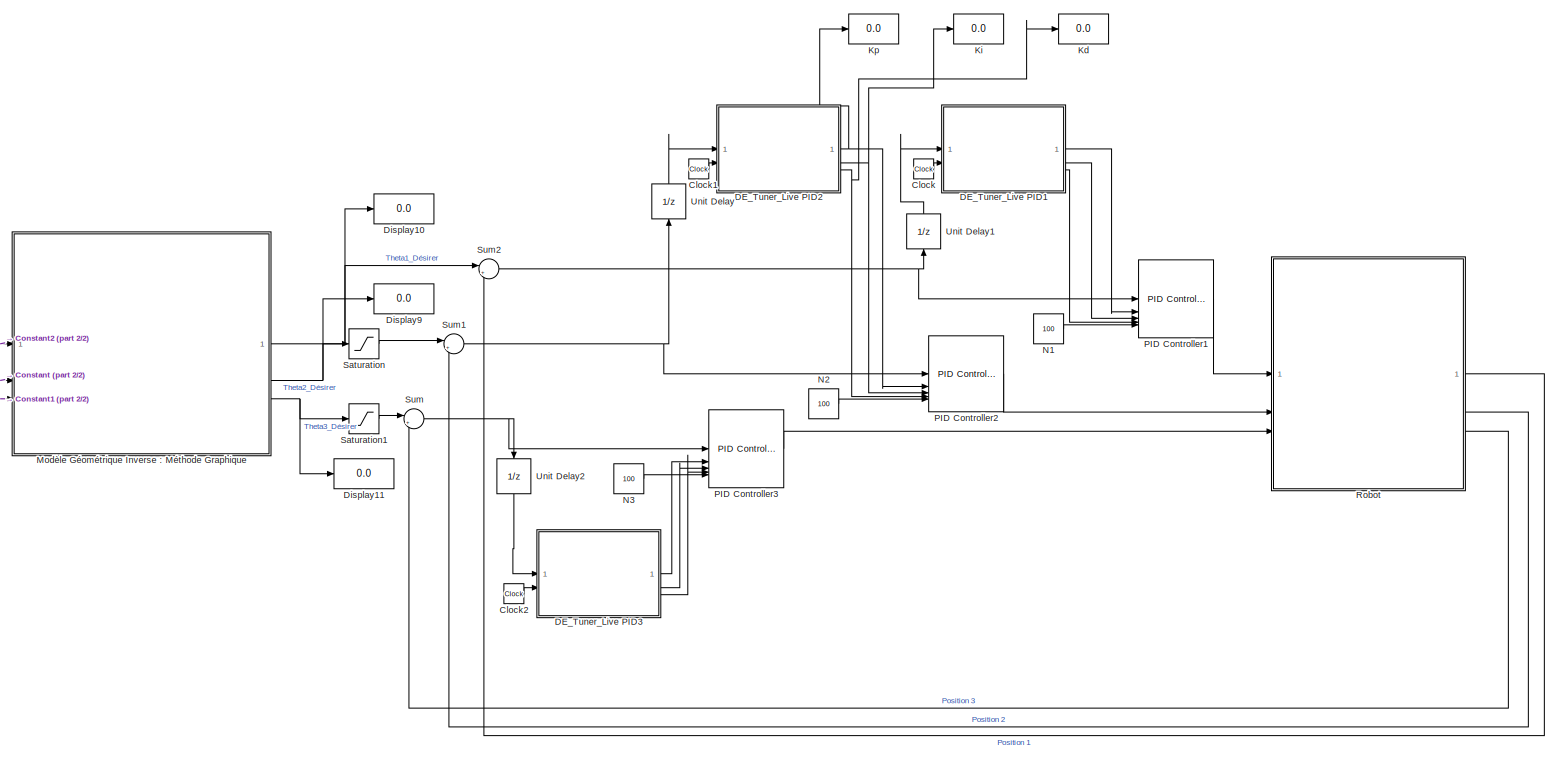
[diagram: root canvas - part 1/2, most of the canvas]
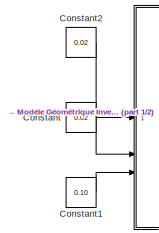
[diagram: root canvas - part 2/2, middle left region]
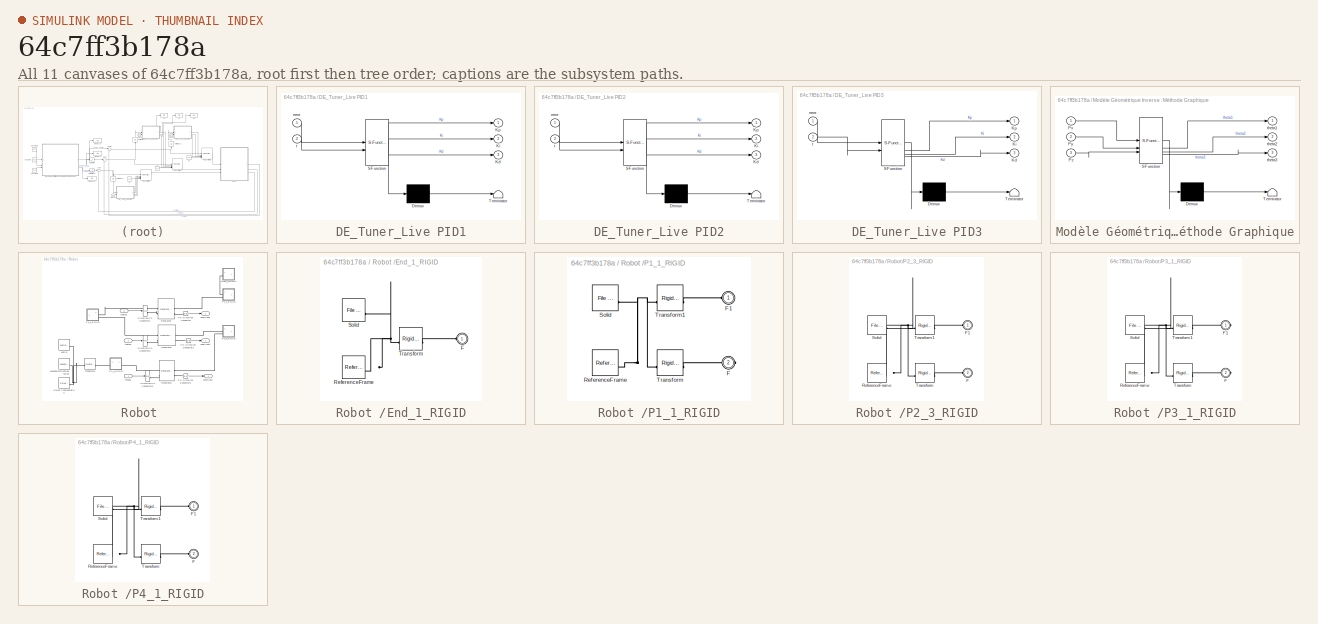
[diagram: thumbnail index - all 11 canvases of the model, root first then tree order]
MODEL slx_64c7ff3b178a
KIND model
CONFIG AbsTol = auto
CONFIG EnableMultiTasking = off
CONFIG FixedStep = auto
CONFIG MaxStep = auto
CONFIG MinStep = auto
CONFIG RelTol = 1e-3
CONFIG SampleTimeConstraint = Unconstrained
CONFIG SolverName = VariableStepAuto
CONFIG StartTime = 0.0
CONFIG StopTime = 10
WORKSPACE source: external: MATLAB File  (data not in archive)
BLOCK [Clock] Clock
  Decimation = 1
  DisplayTime = on
BLOCK [Clock] Clock1
  Decimation = 1
  DisplayTime = on
BLOCK [Clock] Clock2
  Decimation = 1
  DisplayTime = on
BLOCK [Constant] Constant
  Value = 0.02
BLOCK [Constant] Constant1
  Value = 0.10
BLOCK [Constant] Constant2
  Value = 0.02
BLOCK [SubSystem] DE_Tuner_Live PID1
  ErrorFcn = Stateflow.Translate.translate
  PermitHierarchicalResolution = ExplicitOnly
  SFBlockType = MATLAB Function
  TreatAsAtomicUnit = on
BLOCK [Demux] DE_Tuner_Live PID1/ Demux 
  Outputs = 1
BLOCK [S-Function] DE_Tuner_Live PID1/ SFunction 
  EnableBusSupport = off
  FunctionName = sf_sfun
  PortCounts = [2 4]
  SFcnIsStateOwnerBlock = off
  SFunctionDeploymentMode = off
  Tag = Stateflow S-Function 1
BLOCK [Terminator] DE_Tuner_Live PID1/ Terminator 
BLOCK [Outport] DE_Tuner_Live PID1/Kd
  Port = 3
BLOCK [Outport] DE_Tuner_Live PID1/Ki
  Port = 2
BLOCK [Outport] DE_Tuner_Live PID1/Kp
BLOCK [Inport] DE_Tuner_Live PID1/error
BLOCK [Inport] DE_Tuner_Live PID1/t
  Port = 2
BLOCK [SubSystem] DE_Tuner_Live PID2
  ErrorFcn = Stateflow.Translate.translate
  PermitHierarchicalResolution = ExplicitOnly
  SFBlockType = MATLAB Function
  TreatAsAtomicUnit = on
BLOCK [Demux] DE_Tuner_Live PID2/ Demux 
  Outputs = 1
BLOCK [S-Function] DE_Tuner_Live PID2/ SFunction 
  EnableBusSupport = off
  FunctionName = sf_sfun
  PortCounts = [2 4]
  SFcnIsStateOwnerBlock = off
  SFunctionDeploymentMode = off
  Tag = Stateflow S-Function 3
BLOCK [Terminator] DE_Tuner_Live PID2/ Terminator 
BLOCK [Outport] DE_Tuner_Live PID2/Kd
  Port = 3
BLOCK [Outport] DE_Tuner_Live PID2/Ki
  Port = 2
BLOCK [Outport] DE_Tuner_Live PID2/Kp
BLOCK [Inport] DE_Tuner_Live PID2/error
BLOCK [Inport] DE_Tuner_Live PID2/t
  Port = 2
BLOCK [SubSystem] DE_Tuner_Live PID3
  ErrorFcn = Stateflow.Translate.translate
  PermitHierarchicalResolution = ExplicitOnly
  SFBlockType = MATLAB Function
  TreatAsAtomicUnit = on
BLOCK [Demux] DE_Tuner_Live PID3/ Demux 
  Outputs = 1
BLOCK [S-Function] DE_Tuner_Live PID3/ SFunction 
  EnableBusSupport = off
  FunctionName = sf_sfun
  PortCounts = [2 4]
  SFcnIsStateOwnerBlock = off
  SFunctionDeploymentMode = off
  Tag = Stateflow S-Function 4
BLOCK [Terminator] DE_Tuner_Live PID3/ Terminator 
BLOCK [Outport] DE_Tuner_Live PID3/Kd
  Port = 3
BLOCK [Outport] DE_Tuner_Live PID3/Ki
  Port = 2
BLOCK [Outport] DE_Tuner_Live PID3/Kp
BLOCK [Inport] DE_Tuner_Live PID3/error
BLOCK [Inport] DE_Tuner_Live PID3/t
  Port = 2
BLOCK [Display] Display10
  Decimation = 1
BLOCK [Display] Display11
  Decimation = 1
BLOCK [Display] Display9
  Decimation = 1
BLOCK [Display] Kd
  Decimation = 1
BLOCK [Display] Ki
  Decimation = 1
BLOCK [Display] Kp
  Decimation = 1
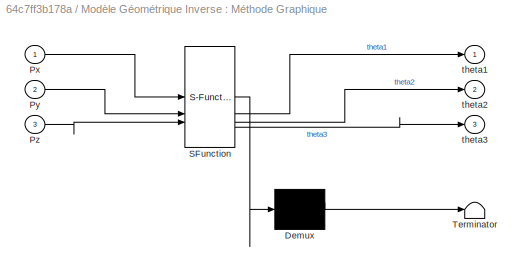
BLOCK [SubSystem] Modèle Géométrique Inverse : Méthode Graphique
  ErrorFcn = Stateflow.Translate.translate
  PermitHierarchicalResolution = ExplicitOnly
  SFBlockType = MATLAB Function
  TreatAsAtomicUnit = on
BLOCK [Demux] Modèle Géométrique Inverse : Méthode Graphique/ Demux 
  Outputs = 1
BLOCK [S-Function] Modèle Géométrique Inverse : Méthode Graphique/ SFunction 
  EnableBusSupport = off
  FunctionName = sf_sfun
  PortCounts = [3 4]
  SFcnIsStateOwnerBlock = off
  SFunctionDeploymentMode = off
  Tag = Stateflow S-Function 2
BLOCK [Terminator] Modèle Géométrique Inverse : Méthode Graphique/ Terminator 
BLOCK [Inport] Modèle Géométrique Inverse : Méthode Graphique/Px
BLOCK [Inport] Modèle Géométrique Inverse : Méthode Graphique/Py
  Port = 2
BLOCK [Inport] Modèle Géométrique Inverse : Méthode Graphique/Pz
  Port = 3
BLOCK [Outport] Modèle Géométrique Inverse : Méthode Graphique/theta1
BLOCK [Outport] Modèle Géométrique Inverse : Méthode Graphique/theta2
  Port = 2
BLOCK [Outport] Modèle Géométrique Inverse : Méthode Graphique/theta3
  Port = 3
BLOCK [Constant] N1
  Value = 100
BLOCK [Constant] N2
  Value = 100
BLOCK [Constant] N3
  Value = 100
BLOCK [Reference] PID Controller1   REF=slpidlib/PID Controller
  LibrarySourceBlock = simulink/Continuous/PID Controller
  SourceBlock = slpidlib/PID Controller
  SourceType = PID 1dof
BLOCK [Reference] PID Controller2    REF=slpidlib/PID Controller
  LibrarySourceBlock = simulink/Continuous/PID Controller
  SourceBlock = slpidlib/PID Controller
  SourceType = PID 1dof
BLOCK [Reference] PID Controller3   REF=slpidlib/PID Controller
  LibrarySourceBlock = simulink/Continuous/PID Controller
  SourceBlock = slpidlib/PID Controller
  SourceType = PID 1dof
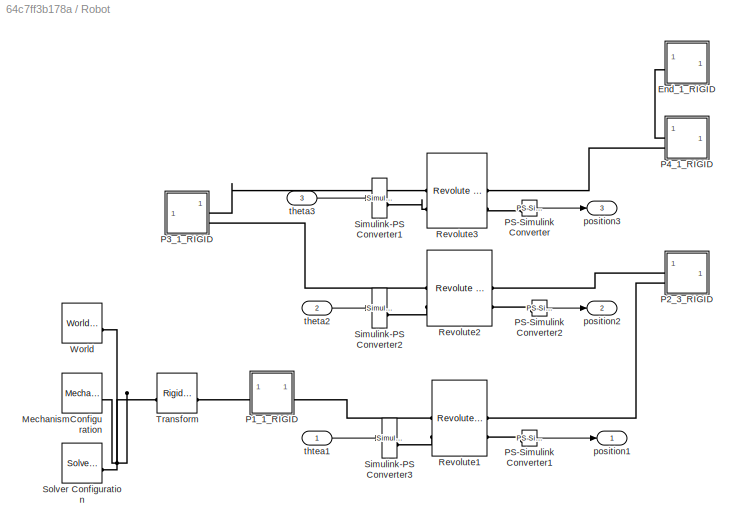
BLOCK [SubSystem] Robot 
BLOCK [SubSystem] Robot /End_1_RIGID
BLOCK [PMIOPort] Robot /End_1_RIGID/F
  Side = Left
BLOCK [Reference] Robot /End_1_RIGID/ReferenceFrame  REF=sm_lib/Frames and
Transforms/Reference
Frame
  SourceBlock = sm_lib/Frames and\nTransforms/Reference\nFrame
  SourceType = Reference\nFrame
BLOCK [Reference] Robot /End_1_RIGID/Solid  REF=sm_lib/Body Elements/File Solid
  SourceBlock = sm_lib/Body Elements/File Solid
  SourceType = File Solid
BLOCK [Reference] Robot /End_1_RIGID/Transform  REF=sm_lib/Frames and
Transforms/Rigid
Transform
  SourceBlock = sm_lib/Frames and\nTransforms/Rigid\nTransform
  SourceType = Rigid\nTransform
BLOCK [Reference] Robot /MechanismConfiguration  REF=sm_lib/Utilities/Mechanism
Configuration
  SourceBlock = sm_lib/Utilities/Mechanism\nConfiguration
  SourceType = Mechanism\nConfiguration
BLOCK [SubSystem] Robot /P1_1_RIGID
BLOCK [PMIOPort] Robot /P1_1_RIGID/F
  Port = 2
  Side = Right
BLOCK [PMIOPort] Robot /P1_1_RIGID/F1
  Side = Left
BLOCK [Reference] Robot /P1_1_RIGID/ReferenceFrame  REF=sm_lib/Frames and
Transforms/Reference
Frame
  SourceBlock = sm_lib/Frames and\nTransforms/Reference\nFrame
  SourceType = Reference\nFrame
BLOCK [Reference] Robot /P1_1_RIGID/Solid  REF=sm_lib/Body Elements/File Solid
  SourceBlock = sm_lib/Body Elements/File Solid
  SourceType = File Solid
BLOCK [Reference] Robot /P1_1_RIGID/Transform  REF=sm_lib/Frames and
Transforms/Rigid
Transform
  SourceBlock = sm_lib/Frames and\nTransforms/Rigid\nTransform
  SourceType = Rigid\nTransform
BLOCK [Reference] Robot /P1_1_RIGID/Transform1  REF=sm_lib/Frames and
Transforms/Rigid
Transform
  SourceBlock = sm_lib/Frames and\nTransforms/Rigid\nTransform
  SourceType = Rigid\nTransform
BLOCK [SubSystem] Robot /P2_3_RIGID
BLOCK [PMIOPort] Robot /P2_3_RIGID/F
  Port = 2
  Side = Left
BLOCK [PMIOPort] Robot /P2_3_RIGID/F1
  Side = Left
BLOCK [Reference] Robot /P2_3_RIGID/ReferenceFrame  REF=sm_lib/Frames and
Transforms/Reference
Frame
  SourceBlock = sm_lib/Frames and\nTransforms/Reference\nFrame
  SourceType = Reference\nFrame
BLOCK [Reference] Robot /P2_3_RIGID/Solid  REF=sm_lib/Body Elements/File Solid
  SourceBlock = sm_lib/Body Elements/File Solid
  SourceType = File Solid
BLOCK [Reference] Robot /P2_3_RIGID/Transform  REF=sm_lib/Frames and
Transforms/Rigid
Transform
  SourceBlock = sm_lib/Frames and\nTransforms/Rigid\nTransform
  SourceType = Rigid\nTransform
BLOCK [Reference] Robot /P2_3_RIGID/Transform1  REF=sm_lib/Frames and
Transforms/Rigid
Transform
  SourceBlock = sm_lib/Frames and\nTransforms/Rigid\nTransform
  SourceType = Rigid\nTransform
BLOCK [SubSystem] Robot /P3_1_RIGID
BLOCK [PMIOPort] Robot /P3_1_RIGID/F
  Port = 2
  Side = Right
BLOCK [PMIOPort] Robot /P3_1_RIGID/F1
  Side = Right
BLOCK [Reference] Robot /P3_1_RIGID/ReferenceFrame  REF=sm_lib/Frames and
Transforms/Reference
Frame
  SourceBlock = sm_lib/Frames and\nTransforms/Reference\nFrame
  SourceType = Reference\nFrame
BLOCK [Reference] Robot /P3_1_RIGID/Solid  REF=sm_lib/Body Elements/File Solid
  SourceBlock = sm_lib/Body Elements/File Solid
  SourceType = File Solid
BLOCK [Reference] Robot /P3_1_RIGID/Transform  REF=sm_lib/Frames and
Transforms/Rigid
Transform
  SourceBlock = sm_lib/Frames and\nTransforms/Rigid\nTransform
  SourceType = Rigid\nTransform
BLOCK [Reference] Robot /P3_1_RIGID/Transform1  REF=sm_lib/Frames and
Transforms/Rigid
Transform
  SourceBlock = sm_lib/Frames and\nTransforms/Rigid\nTransform
  SourceType = Rigid\nTransform
BLOCK [SubSystem] Robot /P4_1_RIGID
BLOCK [PMIOPort] Robot /P4_1_RIGID/F
  Port = 2
  Side = Left
BLOCK [PMIOPort] Robot /P4_1_RIGID/F1
  Side = Left
BLOCK [Reference] Robot /P4_1_RIGID/ReferenceFrame  REF=sm_lib/Frames and
Transforms/Reference
Frame
  SourceBlock = sm_lib/Frames and\nTransforms/Reference\nFrame
  SourceType = Reference\nFrame
BLOCK [Reference] Robot /P4_1_RIGID/Solid  REF=sm_lib/Body Elements/File Solid
  SourceBlock = sm_lib/Body Elements/File Solid
  SourceType = File Solid
BLOCK [Reference] Robot /P4_1_RIGID/Transform  REF=sm_lib/Frames and
Transforms/Rigid
Transform
  SourceBlock = sm_lib/Frames and\nTransforms/Rigid\nTransform
  SourceType = Rigid\nTransform
BLOCK [Reference] Robot /P4_1_RIGID/Transform1  REF=sm_lib/Frames and
Transforms/Rigid
Transform
  SourceBlock = sm_lib/Frames and\nTransforms/Rigid\nTransform
  SourceType = Rigid\nTransform
BLOCK [Reference] Robot /PS-Simulink Converter  REF=nesl_utility/PS-Simulink
Converter
  SourceBlock = nesl_utility/PS-Simulink\nConverter
  SourceType = PS-Simulink\nConverter
BLOCK [Reference] Robot /PS-Simulink Converter1  REF=nesl_utility/PS-Simulink
Converter
  SourceBlock = nesl_utility/PS-Simulink\nConverter
  SourceType = PS-Simulink\nConverter
BLOCK [Reference] Robot /PS-Simulink Converter2  REF=nesl_utility/PS-Simulink
Converter
  SourceBlock = nesl_utility/PS-Simulink\nConverter
  SourceType = PS-Simulink\nConverter
BLOCK [Reference] Robot /Revolute1  REF=sm_lib/Joints/Revolute Joint
  SourceBlock = sm_lib/Joints/Revolute Joint
  SourceType = Revolute Joint
BLOCK [Reference] Robot /Revolute2  REF=sm_lib/Joints/Revolute Joint
  SourceBlock = sm_lib/Joints/Revolute Joint
  SourceType = Revolute Joint
BLOCK [Reference] Robot /Revolute3  REF=sm_lib/Joints/Revolute Joint
  SourceBlock = sm_lib/Joints/Revolute Joint
  SourceType = Revolute Joint
BLOCK [Reference] Robot /Simulink-PS Converter1  REF=nesl_utility/Simulink-PS
Converter
  SourceBlock = nesl_utility/Simulink-PS\nConverter
  SourceType = Simulink-PS\nConverter
BLOCK [Reference] Robot /Simulink-PS Converter2  REF=nesl_utility/Simulink-PS
Converter
  SourceBlock = nesl_utility/Simulink-PS\nConverter
  SourceType = Simulink-PS\nConverter
BLOCK [Reference] Robot /Simulink-PS Converter3  REF=nesl_utility/Simulink-PS
Converter
  SourceBlock = nesl_utility/Simulink-PS\nConverter
  SourceType = Simulink-PS\nConverter
BLOCK [Reference] Robot /Solver Configuration  REF=nesl_utility/Solver
Configuration
  SourceBlock = nesl_utility/Solver\nConfiguration
  SourceType = Solver\nConfiguration
BLOCK [Reference] Robot /Transform  REF=sm_lib/Frames and
Transforms/Rigid
Transform
  SourceBlock = sm_lib/Frames and\nTransforms/Rigid\nTransform
  SourceType = Rigid\nTransform
BLOCK [Reference] Robot /World  REF=sm_lib/Frames and
Transforms/World Frame
  SourceBlock = sm_lib/Frames and\nTransforms/World Frame
  SourceType = World Frame
BLOCK [Outport] Robot /position1
BLOCK [Outport] Robot /position2
  Port = 2
BLOCK [Outport] Robot /position3
  Port = 3
BLOCK [Inport] Robot /theta2
  Port = 2
BLOCK [Inport] Robot /theta3
  Port = 3
BLOCK [Inport] Robot /thtea1
BLOCK [Saturate] Saturation
  LowerLimit = (-pi)/2
  UpperLimit = pi/2
BLOCK [Saturate] Saturation1
  LowerLimit = (-pi)/4
  UpperLimit = pi/4
BLOCK [Sum] Sum
  Inputs = |+-
BLOCK [Sum] Sum1
  Inputs = |+-
BLOCK [Sum] Sum2
  Inputs = |+-
BLOCK [UnitDelay] Unit Delay
  HasFrameUpgradeWarning = on
  NameLocation = right
  SampleTime = -1
BLOCK [UnitDelay] Unit Delay1
  HasFrameUpgradeWarning = on
  NameLocation = right
  SampleTime = -1
BLOCK [UnitDelay] Unit Delay2
  HasFrameUpgradeWarning = on
  NameLocation = left
  SampleTime = -1
LINE Clock1:1 -> DE_Tuner_Live PID2:2
LINE Clock2:1 -> DE_Tuner_Live PID3:2
LINE Clock:1 -> DE_Tuner_Live PID1:2
LINE Constant1:1 -> Modèle Géométrique Inverse : Méthode Graphique:3
LINE Constant2:1 -> Modèle Géométrique Inverse : Méthode Graphique:1
LINE Constant:1 -> Modèle Géométrique Inverse : Méthode Graphique:2
LINE DE_Tuner_Live PID1:1 -> PID Controller1 :2
LINE DE_Tuner_Live PID1:2 -> PID Controller1 :3
LINE DE_Tuner_Live PID1:3 -> PID Controller1 :4
NET DE_Tuner_Live PID2:1 -> Kp:1, PID Controller2  :2
NET DE_Tuner_Live PID2:2 -> Ki:1, PID Controller2  :3
NET DE_Tuner_Live PID2:3 -> Kd:1, PID Controller2  :4
LINE DE_Tuner_Live PID3:1 -> PID Controller3 :2
LINE DE_Tuner_Live PID3:2 -> PID Controller3 :3
LINE DE_Tuner_Live PID3:3 -> PID Controller3 :4
NET Modèle Géométrique Inverse : Méthode Graphique:1 -> Display10:1, Sum2:1
NET Modèle Géométrique Inverse : Méthode Graphique:2 -> Display9:1, Saturation:1
NET Modèle Géométrique Inverse : Méthode Graphique:3 -> Display11:1, Saturation1:1
LINE N1:1 -> PID Controller1 :5
LINE N2:1 -> PID Controller2  :5
LINE N3:1 -> PID Controller3 :5
LINE PID Controller1 :1 -> Robot :1
LINE PID Controller2  :1 -> Robot :2
LINE PID Controller3 :1 -> Robot :3
LINE Robot /PS-Simulink Converter1:1 -> Robot /position1:1
LINE Robot /PS-Simulink Converter2:1 -> Robot /position2:1
LINE Robot /PS-Simulink Converter:1 -> Robot /position3:1
LINE Robot /theta2:1 -> Robot /Simulink-PS Converter2:1
LINE Robot /theta3:1 -> Robot /Simulink-PS Converter1:1
LINE Robot /thtea1:1 -> Robot /Simulink-PS Converter3:1
LINE Robot :1 -> Sum2:2
LINE Robot :2 -> Sum1:2
LINE Robot :3 -> Sum:2
LINE Saturation1:1 -> Sum:1
LINE Saturation:1 -> Sum1:1
NET Sum1:1 -> PID Controller2  :1, Unit Delay:1
NET Sum2:1 -> PID Controller1 :1, Unit Delay1:1
NET Sum:1 -> PID Controller3 :1, Unit Delay2:1
LINE Unit Delay1:1 -> DE_Tuner_Live PID1:1
LINE Unit Delay2:1 -> DE_Tuner_Live PID3:1
LINE Unit Delay:1 -> DE_Tuner_Live PID2:1
PLINE Robot /End_1_RIGID/F:RConn1 -- Robot /End_1_RIGID/Transform:RConn1
PNET net1: Robot /End_1_RIGID/ReferenceFrame:RConn1 -- Robot /End_1_RIGID/Solid:RConn1 -- Robot /End_1_RIGID/Transform:LConn1
PLINE Robot /End_1_RIGID:LConn1 -- Robot /P4_1_RIGID:LConn1
PNET net2: Robot /MechanismConfiguration:RConn1 -- Robot /Solver Configuration:RConn1 -- Robot /Transform:LConn1 -- Robot /World:RConn1
PLINE Robot /P1_1_RIGID/F1:RConn1 -- Robot /P1_1_RIGID/Transform1:RConn1
PLINE Robot /P1_1_RIGID/F:RConn1 -- Robot /P1_1_RIGID/Transform:RConn1
PNET net3: Robot /P1_1_RIGID/ReferenceFrame:RConn1 -- Robot /P1_1_RIGID/Solid:RConn1 -- Robot /P1_1_RIGID/Transform1:LConn1 -- Robot /P1_1_RIGID/Transform:LConn1
PLINE Robot /P1_1_RIGID:LConn1 -- Robot /Transform:RConn1
PLINE Robot /P1_1_RIGID:RConn1 -- Robot /Revolute1:LConn1
PLINE Robot /P2_3_RIGID/F1:RConn1 -- Robot /P2_3_RIGID/Transform1:RConn1
PLINE Robot /P2_3_RIGID/F:RConn1 -- Robot /P2_3_RIGID/Transform:RConn1
PNET net4: Robot /P2_3_RIGID/ReferenceFrame:RConn1 -- Robot /P2_3_RIGID/Solid:RConn1 -- Robot /P2_3_RIGID/Transform1:LConn1 -- Robot /P2_3_RIGID/Transform:LConn1
PLINE Robot /P2_3_RIGID:LConn1 -- Robot /Revolute2:RConn1
PLINE Robot /P2_3_RIGID:LConn2 -- Robot /Revolute1:RConn1
PLINE Robot /P3_1_RIGID/F1:RConn1 -- Robot /P3_1_RIGID/Transform1:RConn1
PLINE Robot /P3_1_RIGID/F:RConn1 -- Robot /P3_1_RIGID/Transform:RConn1
PNET net5: Robot /P3_1_RIGID/ReferenceFrame:RConn1 -- Robot /P3_1_RIGID/Solid:RConn1 -- Robot /P3_1_RIGID/Transform1:LConn1 -- Robot /P3_1_RIGID/Transform:LConn1
PLINE Robot /P3_1_RIGID:RConn1 -- Robot /Revolute3:LConn1
PLINE Robot /P3_1_RIGID:RConn2 -- Robot /Revolute2:LConn1
PLINE Robot /P4_1_RIGID/F1:RConn1 -- Robot /P4_1_RIGID/Transform1:RConn1
PLINE Robot /P4_1_RIGID/F:RConn1 -- Robot /P4_1_RIGID/Transform:RConn1
PNET net6: Robot /P4_1_RIGID/ReferenceFrame:RConn1 -- Robot /P4_1_RIGID/Solid:RConn1 -- Robot /P4_1_RIGID/Transform1:LConn1 -- Robot /P4_1_RIGID/Transform:LConn1
PLINE Robot /P4_1_RIGID:LConn2 -- Robot /Revolute3:RConn1
PLINE Robot /PS-Simulink Converter1:LConn1 -- Robot /Revolute1:RConn2
PLINE Robot /PS-Simulink Converter2:LConn1 -- Robot /Revolute2:RConn2
PLINE Robot /PS-Simulink Converter:LConn1 -- Robot /Revolute3:RConn2
PLINE Robot /Revolute1:LConn2 -- Robot /Simulink-PS Converter3:RConn1
PLINE Robot /Revolute2:LConn2 -- Robot /Simulink-PS Converter2:RConn1
PLINE Robot /Revolute3:LConn2 -- Robot /Simulink-PS Converter1:RConn1
note: NET lines group one-source signal fan-out (src -> all destinations, sorted); 1:1 wires keep LINE; PNET lines group multi-terminal physical nets as a canonical sorted terminal list (undirected conserving connections); 2-terminal nets keep the pairwise PLINE form
CHART DE_Tuner_Live PID1 states=1 transitions=1
  STATE_LABEL 'eML_blk_kernel()'
  STATE_LABEL 'SCRIPT:\nfunction [Kp, Ki, Kd] = DE_Tuner_Live(error, t)\n    % Paramètres du DE\n    persistent population fitness best_gains is_initialized\n    NP = 10; % Petite population pour la vitesse\n    D = 3;   % Kp, Ki, Kd\n    \n    % Initialisation au premier pas de temps\n    if isempty(is_initialized)\n        population = rand(NP, D) * 10; % Gains aléatoires au départ\n        fitness = ones(NP, 1) * 1e6;\n...<+1168ch>'  <repeated x3 — deduplicated; at blocks: DE_Tuner_Live PID1, DE_Tuner_Live PID2, DE_Tuner_Live PID3>
CHART Modèle Géométrique Inverse : Méthode Graphique states=1 transitions=1
  STATE_LABEL 'eML_blk_kernel()'
  STATE_LABEL 'SCRIPT:\nfunction [theta1, theta2, theta3] = IK_Geometrique(Px, Py, Pz)\n%#codegen\n\n% ---- Constantes robot (mets tes vraies valeurs) ----\nd1 = 0.007906;\nL2 = 0.065765;\nL3 = 0.074987;\n\n% ---- Calculs intermédiaires ----\nr = sqrt(Px^2 + Py^2 + (Pz - d1)^2);\n\n% Sécurité numérique (evite acos/asin hors [-1,1])\nclamp = @(x) max(-1, min(1, x));\n\n% ---- Thetas (radians) ----\ntheta1 = atan2(Py, Px);\n\ntheta...<+210ch>'
CHART DE_Tuner_Live PID2 states=1 transitions=1
  STATE_LABEL 'eML_blk_kernel()'
CHART DE_Tuner_Live PID3 states=1 transitions=1
  STATE_LABEL 'eML_blk_kernel()'
CHART  states=0 transitions=0
CHART  states=0 transitions=0
CHART  states=0 transitions=0
CHART  states=0 transitions=0
